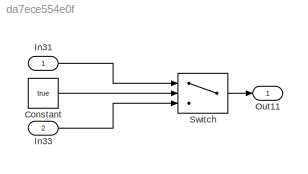
MODEL slx_da7ece554e0f
KIND model
CONFIG AbsTol = auto
CONFIG EnableMultiTasking = on
CONFIG FixedStep = 1.000000
CONFIG MaxStep = auto
CONFIG MinStep = auto
CONFIG RelTol = 1e-3
CONFIG SampleTimeConstraint = Unconstrained
CONFIG Solver = FixedStepDiscrete
CONFIG SolverName = FixedStepDiscrete
CONFIG StartTime = 0.0
CONFIG StopTime = 10.0
BLOCK [Constant] Constant
  OutDataTypeStr = boolean
  Value = true
BLOCK [Inport] In31
  IconDisplay = Port number
  OutDataTypeStr = double
  PortDimensions = 2
BLOCK [Inport] In33
  IconDisplay = Port number
  OutDataTypeStr = double
  Port = 2
  PortDimensions = 2
BLOCK [Outport] Out11
  IconDisplay = Port number
BLOCK [Switch] Switch
  Criteria = u2 ~= 0
  SaturateOnIntegerOverflow = off
LINE Constant:1 -> Switch:2
LINE In31:1 -> Switch:1
LINE In33:1 -> Switch:3
LINE Switch:1 -> Out11:1
